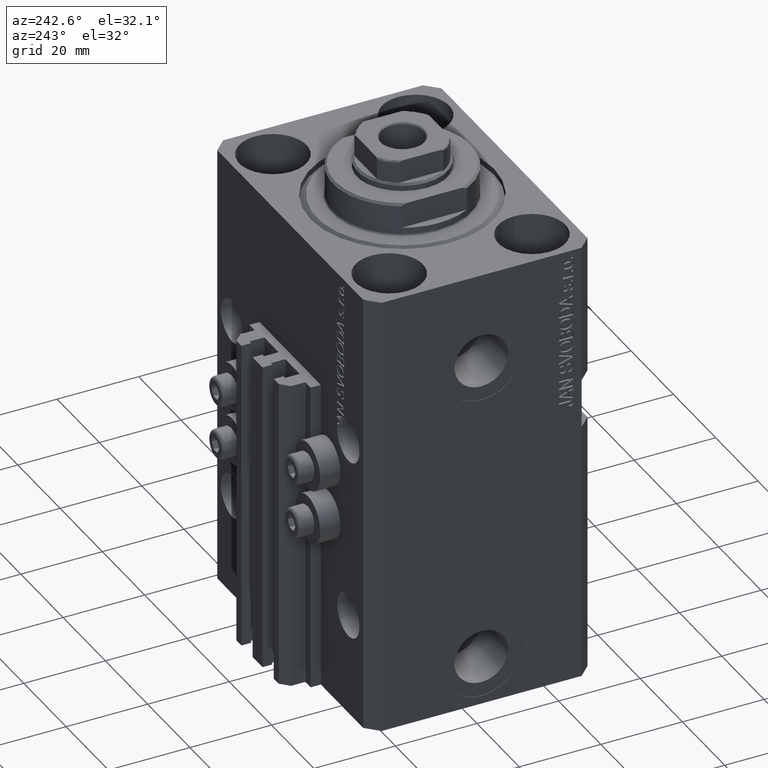
[diagram: clean part render]
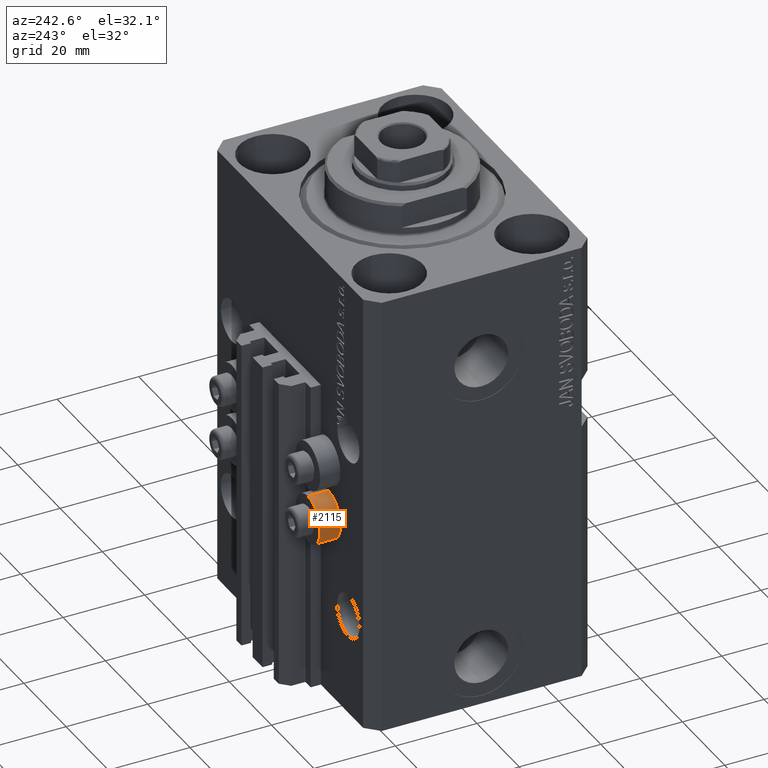
[diagram: same view with one face highlighted and labeled with its STEP entity id]
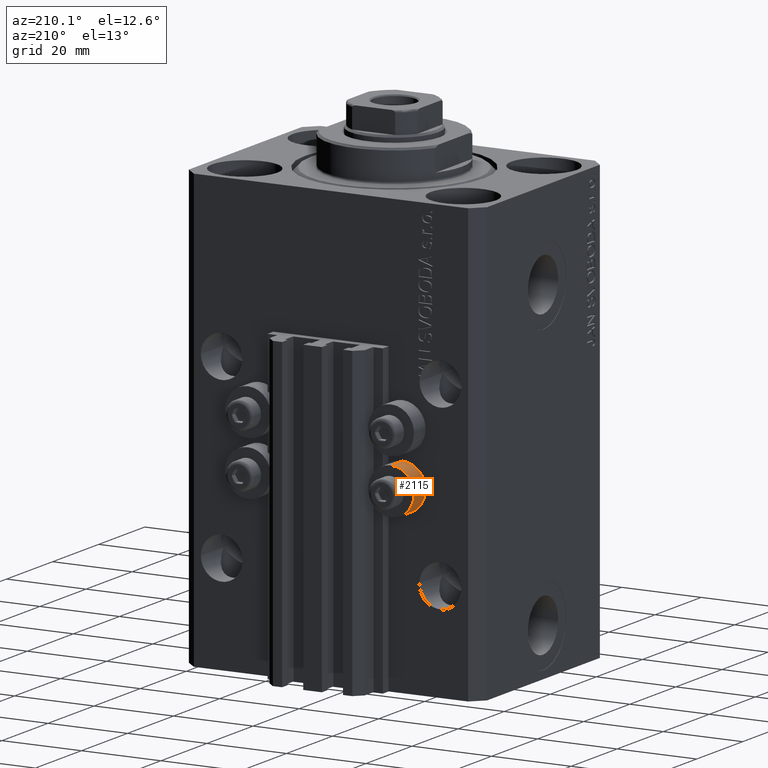
[diagram: same view with one face highlighted and labeled with its STEP entity id]
A machine part, auxiliary view. The second image highlights one B-rep face of the part: STEP entity #2115.
A second angle (auxiliary view) of the same face is appended — the face is thin or edge-on in the first view.
In plain terms, the highlighted cylindrical surface (edge-blend (fillet) strip) has radius 5.8 mm, axis along (0, 1, 0).
Its self-contained STEP definition (entity closure, byte-faithful):
#1147 = ORIENTED_EDGE ( 'NONE', *, *, #6440, .F. ) ;
#1785 = VERTEX_POINT ( 'NONE', #33160 ) ;
#2115 = ADVANCED_FACE ( 'NONE', ( #6120 ), #39318, .T. ) ;
#2164 = VECTOR ( 'NONE', #29759, 1000.000000000000000 ) ;
#2246 = ORIENTED_EDGE ( 'NONE', *, *, #45182, .T. ) ;
#3808 = CARTESIAN_POINT ( 'NONE',  ( -18.00000000000000355, 32.49999999996100541, -58.20000000000000284 ) ) ;
#4120 = AXIS2_PLACEMENT_3D ( 'NONE', #12903, #43190, #13620 ) ;
#5494 = CARTESIAN_POINT ( 'NONE',  ( -18.00000000000000355, 32.49999999996100541, -64.00000000000000000 ) ) ;
#6120 = FACE_OUTER_BOUND ( 'NONE', #36778, .T. ) ;
#6440 = EDGE_CURVE ( 'NONE', #32437, #26960, #21554, .T. ) ;
#7378 = ORIENTED_EDGE ( 'NONE', *, *, #30629, .T. ) ;
#8567 = LINE ( 'NONE', #41540, #28628 ) ;
#9954 = AXIS2_PLACEMENT_3D ( 'NONE', #14131, #32788, #43704 ) ;
#10191 = CARTESIAN_POINT ( 'NONE',  ( -18.00000000000000355, 27.50000000000000355, -58.20000000000000284 ) ) ;
#11680 = ORIENTED_EDGE ( 'NONE', *, *, #35398, .F. ) ;
#12903 = CARTESIAN_POINT ( 'NONE',  ( -18.00000000000000355, 32.49999999996100541, -64.00000000000000000 ) ) ;
#13239 = DIRECTION ( 'NONE',  ( -0.000000000000000000, -1.000000000000000000, -0.000000000000000000 ) ) ;
#13620 = DIRECTION ( 'NONE',  ( 0.000000000000000000, 0.000000000000000000, -1.000000000000000000 ) ) ;
#14131 = CARTESIAN_POINT ( 'NONE',  ( -18.00000000000000355, 27.50000000000000355, -64.00000000000000000 ) ) ;
#14972 = CARTESIAN_POINT ( 'NONE',  ( -18.00000000000000355, 32.49999999996100541, -58.20000000000000284 ) ) ;
#17118 = VERTEX_POINT ( 'NONE', #3808 ) ;
#18330 = CIRCLE ( 'NONE', #47722, 5.799999999999999822 ) ;
#21554 = CIRCLE ( 'NONE', #9954, 5.799999999999999822 ) ;
#23175 = CARTESIAN_POINT ( 'NONE',  ( -18.00000000000000355, 27.50000000000000355, -69.79999999999999716 ) ) ;
#23361 = DIRECTION ( 'NONE',  ( 0.000000000000000000, 1.000000000000000000, 0.000000000000000000 ) ) ;
#26960 = VERTEX_POINT ( 'NONE', #23175 ) ;
#28628 = VECTOR ( 'NONE', #23361, 1000.000000000000000 ) ;
#29759 = DIRECTION ( 'NONE',  ( 0.000000000000000000, 1.000000000000000000, 0.000000000000000000 ) ) ;
#30243 = LINE ( 'NONE', #14972, #2164 ) ;
#30629 = EDGE_CURVE ( 'NONE', #17118, #1785, #18330, .T. ) ;
#32437 = VERTEX_POINT ( 'NONE', #10191 ) ;
#32788 = DIRECTION ( 'NONE',  ( -0.000000000000000000, -1.000000000000000000, -0.000000000000000000 ) ) ;
#33019 = DIRECTION ( 'NONE',  ( 0.000000000000000000, 0.000000000000000000, -1.000000000000000000 ) ) ;
#33160 = CARTESIAN_POINT ( 'NONE',  ( -18.00000000000000355, 32.49999999996100541, -69.79999999999999716 ) ) ;
#35398 = EDGE_CURVE ( 'NONE', #26960, #1785, #8567, .T. ) ;
#36778 = EDGE_LOOP ( 'NONE', ( #1147, #2246, #7378, #11680 ) ) ;
#39318 = CYLINDRICAL_SURFACE ( 'NONE', #4120, 5.799999999999999822 ) ;
#41540 = CARTESIAN_POINT ( 'NONE',  ( -18.00000000000000355, 32.49999999996100541, -69.79999999999999716 ) ) ;
#43190 = DIRECTION ( 'NONE',  ( 0.000000000000000000, 1.000000000000000000, 0.000000000000000000 ) ) ;
#43704 = DIRECTION ( 'NONE',  ( 0.000000000000000000, 0.000000000000000000, -1.000000000000000000 ) ) ;
#45182 = EDGE_CURVE ( 'NONE', #32437, #17118, #30243, .T. ) ;
#47722 = AXIS2_PLACEMENT_3D ( 'NONE', #5494, #13239, #33019 ) ;